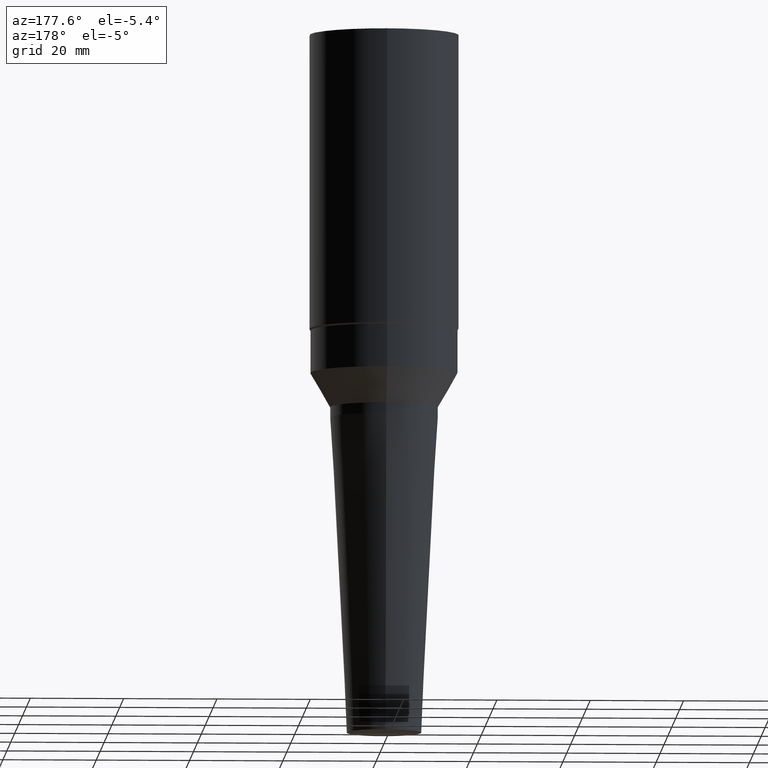
[diagram: clean part render]
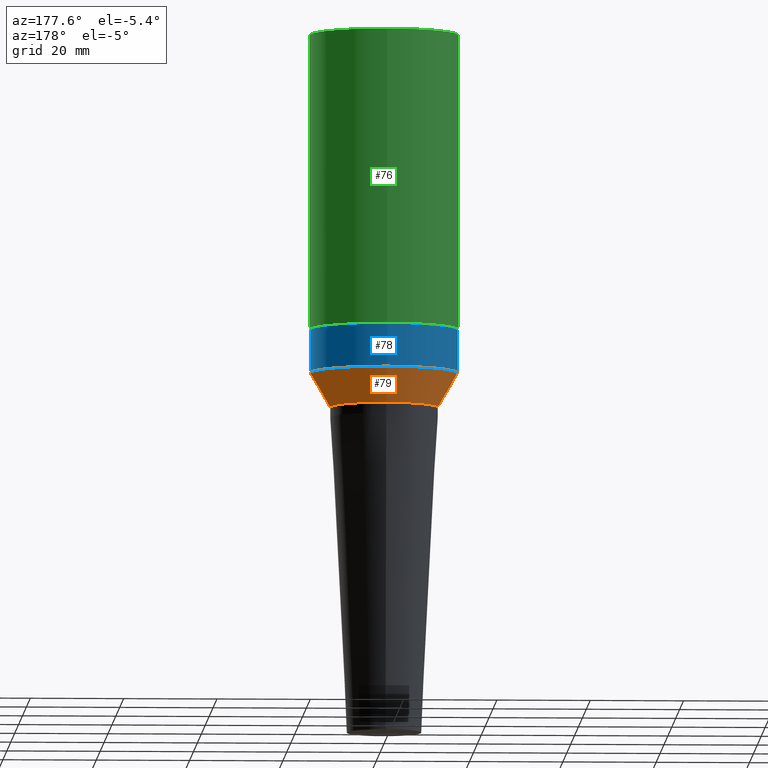
[diagram: same view with three faces highlighted in distinct colors, each labeled with its STEP entity id]
A machine part, auxiliary view with three faces highlighted in distinct colors.
Their STEP definitions:

[orange] entity #79 — the highlighted conical surface has half-angle 30 deg.
#79=ADVANCED_FACE('',(#95,#96),#97,.T.);
#95=FACE_BOUND('',#117,.T.);
#96=FACE_BOUND('',#118,.T.);
#97=CONICAL_SURFACE('',#119,13.675,0.523598775725812);
#117=EDGE_LOOP('',(#147));
#118=EDGE_LOOP('',(#148));
#119=AXIS2_PLACEMENT_3D('',#149,#150,#151);
#147=ORIENTED_EDGE('',*,*,#170,.F.);
#148=ORIENTED_EDGE('',*,*,#169,.T.);
#149=CARTESIAN_POINT('',(-4.51163603517841E-015,-9.02327207035682E-015,73.680607965));
#150=DIRECTION('',(-6.12323399573677E-017,-1.22464679914735E-016,1.0));
#151=DIRECTION('',(-1.23259516440783E-032,1.0,1.22464679914735E-016));
#169=EDGE_CURVE('',#179,#179,#180,.T.);
#170=EDGE_CURVE('',#181,#181,#182,.T.);
#179=VERTEX_POINT('',#193);
#180=CIRCLE('',#194,15.8);
#181=VERTEX_POINT('',#195);
#182=CIRCLE('',#196,11.55);
#193=CARTESIAN_POINT('',(-4.73700827334109E-015,15.8,77.36121593));
#194=AXIS2_PLACEMENT_3D('',#210,#211,#212);
#195=CARTESIAN_POINT('',(-4.28626379701574E-015,11.55,70.0));
#196=AXIS2_PLACEMENT_3D('',#213,#214,#215);
#210=CARTESIAN_POINT('',(-4.73700827334109E-015,-9.47401654668217E-015,77.36121593));
#211=DIRECTION('',(6.12323399573677E-017,1.22464679914735E-016,-1.0));
#212=DIRECTION('',(-1.23259516440783E-032,1.0,1.22464679914735E-016));
#213=CARTESIAN_POINT('',(-4.28626379701574E-015,-8.57252759403147E-015,70.0));
#214=DIRECTION('',(6.12323399573677E-017,1.22464679914735E-016,-1.0));
#215=DIRECTION('',(-1.23259516440783E-032,1.0,1.22464679914735E-016));

[blue] entity #78 — the highlighted cylindrical surface (bore or boss wall) has radius 15.8 mm, axis along (-0, -0, 1).
#78=ADVANCED_FACE('',(#92,#93),#94,.T.);
#92=FACE_BOUND('',#114,.T.);
#93=FACE_BOUND('',#115,.T.);
#94=CYLINDRICAL_SURFACE('',#116,15.8);
#114=EDGE_LOOP('',(#142));
#115=EDGE_LOOP('',(#143));
#116=AXIS2_PLACEMENT_3D('',#144,#145,#146);
#142=ORIENTED_EDGE('',*,*,#169,.F.);
#143=ORIENTED_EDGE('',*,*,#168,.T.);
#144=CARTESIAN_POINT('',(-5.01680283982669E-015,-1.00336056796534E-014,81.930607965));
#145=DIRECTION('',(-6.12323399573677E-017,-1.22464679914735E-016,1.0));
#146=DIRECTION('',(-1.23259516440783E-032,1.0,1.22464679914735E-016));
#168=EDGE_CURVE('',#177,#177,#178,.T.);
#169=EDGE_CURVE('',#179,#179,#180,.T.);
#177=VERTEX_POINT('',#191);
#178=CIRCLE('',#192,15.8);
#179=VERTEX_POINT('',#193);
#180=CIRCLE('',#194,15.8);
#191=CARTESIAN_POINT('',(-5.2965974063123E-015,15.8,86.5));
#192=AXIS2_PLACEMENT_3D('',#207,#208,#209);
#193=CARTESIAN_POINT('',(-4.73700827334109E-015,15.8,77.36121593));
#194=AXIS2_PLACEMENT_3D('',#210,#211,#212);
#207=CARTESIAN_POINT('',(-5.2965974063123E-015,-1.05931948126246E-014,86.5));
#208=DIRECTION('',(6.12323399573677E-017,1.22464679914735E-016,-1.0));
#209=DIRECTION('',(-1.23259516440783E-032,1.0,1.22464679914735E-016));
#210=CARTESIAN_POINT('',(-4.73700827334109E-015,-9.47401654668217E-015,77.36121593));
#211=DIRECTION('',(6.12323399573677E-017,1.22464679914735E-016,-1.0));
#212=DIRECTION('',(-1.23259516440783E-032,1.0,1.22464679914735E-016));

[green] entity #76 — the highlighted cylindrical surface (bore or boss wall) has radius 16 mm, axis along (-0, -0, 1).
#76=ADVANCED_FACE('',(#86,#87),#88,.T.);
#86=FACE_BOUND('',#108,.T.);
#87=FACE_BOUND('',#109,.T.);
#88=CYLINDRICAL_SURFACE('',#110,16.0);
#108=EDGE_LOOP('',(#132));
#109=EDGE_LOOP('',(#133));
#110=AXIS2_PLACEMENT_3D('',#134,#135,#136);
#132=ORIENTED_EDGE('',*,*,#167,.F.);
#133=ORIENTED_EDGE('',*,*,#166,.T.);
#134=CARTESIAN_POINT('',(-7.25132995229963E-015,-1.45026599045993E-014,118.42320508));
#135=DIRECTION('',(-6.12323399573677E-017,-1.22464679914735E-016,1.0));
#136=DIRECTION('',(-1.23259516440783E-032,1.0,1.22464679914735E-016));
#166=EDGE_CURVE('',#173,#173,#174,.T.);
#167=EDGE_CURVE('',#175,#175,#176,.T.);
#173=VERTEX_POINT('',#187);
#174=CIRCLE('',#188,16.0);
#175=VERTEX_POINT('',#189);
#176=CIRCLE('',#190,16.0);
#187=CARTESIAN_POINT('',(-9.18485099360515E-015,16.0,150.0));
#188=AXIS2_PLACEMENT_3D('',#201,#202,#203);
#189=CARTESIAN_POINT('',(-5.31780891099411E-015,16.0,86.84641016));
#190=AXIS2_PLACEMENT_3D('',#204,#205,#206);
#201=CARTESIAN_POINT('',(-9.18485099360515E-015,-1.83697019872103E-014,150.0));
#202=DIRECTION('',(6.12323399573677E-017,1.22464679914735E-016,-1.0));
#203=DIRECTION('',(-1.23259516440783E-032,1.0,1.22464679914735E-016));
#204=CARTESIAN_POINT('',(-5.31780891099411E-015,-1.06356178219882E-014,86.84641016));
#205=DIRECTION('',(6.12323399573677E-017,1.22464679914735E-016,-1.0));
#206=DIRECTION('',(-1.23259516440783E-032,1.0,1.22464679914735E-016));